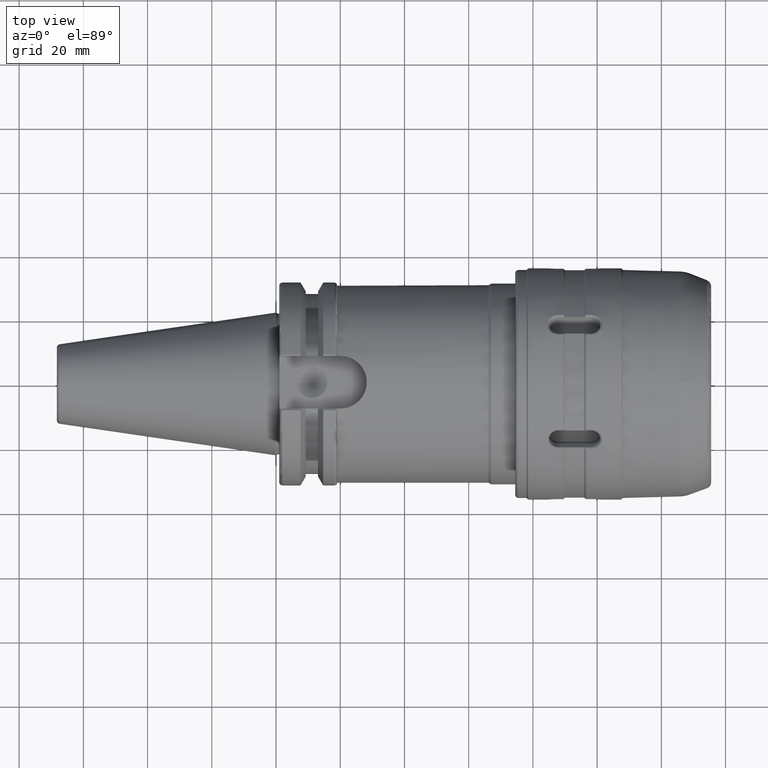
[diagram: clean part render]
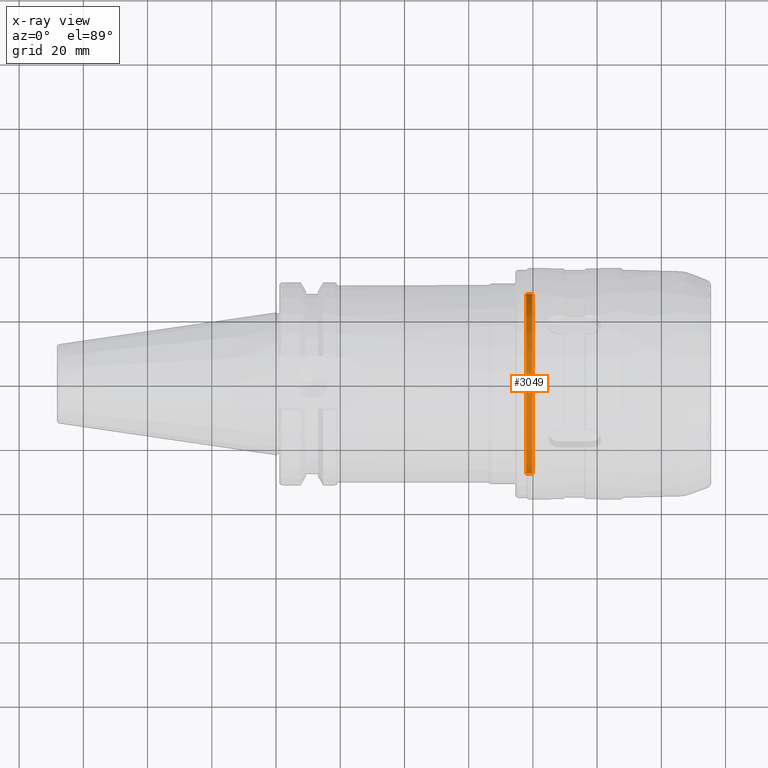
[diagram: x-ray — body ghosted, one internal face saturated and labeled with its STEP entity id]
A machine part, top view, then the same camera in x-ray: the body is ghosted and one INTERNAL B-rep face — a face not visible from any outside direction — is saturated and labeled: STEP entity #3049.
In plain terms, the highlighted cylindrical surface (bore or boss wall) has radius 28 mm, axis along (1, 0, 0).
Its self-contained STEP definition (entity closure, byte-faithful):
#391=FACE_OUTER_BOUND('',#582,.T.);
#582=EDGE_LOOP('',(#2820,#2821,#2822,#2823));
#717=CIRCLE('',#3418,28.);
#718=CIRCLE('',#3420,28.);
#944=LINE('',#6395,#1169);
#1169=VECTOR('',#4239,28.);
#1496=VERTEX_POINT('',#6391);
#1497=VERTEX_POINT('',#6394);
#1938=EDGE_CURVE('',#1496,#1496,#717,.T.);
#1939=EDGE_CURVE('',#1496,#1497,#944,.T.);
#1940=EDGE_CURVE('',#1497,#1497,#718,.T.);
#2820=ORIENTED_EDGE('',*,*,#1938,.T.);
#2821=ORIENTED_EDGE('',*,*,#1939,.T.);
#2822=ORIENTED_EDGE('',*,*,#1940,.F.);
#2823=ORIENTED_EDGE('',*,*,#1939,.F.);
#2875=CYLINDRICAL_SURFACE('',#3419,28.);
#3049=ADVANCED_FACE('',(#391),#2875,.F.);
#3418=AXIS2_PLACEMENT_3D('',#6392,#4235,#4236);
#3419=AXIS2_PLACEMENT_3D('',#6393,#4237,#4238);
#3420=AXIS2_PLACEMENT_3D('',#6396,#4240,#4241);
#4235=DIRECTION('center_axis',(1.,0.,0.));
#4236=DIRECTION('ref_axis',(0.,0.,-1.));
#4237=DIRECTION('center_axis',(1.,0.,0.));
#4238=DIRECTION('ref_axis',(0.,1.,0.));
#4239=DIRECTION('',(-1.,0.,0.));
#4240=DIRECTION('center_axis',(1.,0.,0.));
#4241=DIRECTION('ref_axis',(0.,0.,-1.));
#6391=CARTESIAN_POINT('',(5.3,-28.,-3.42901103761259E-15));
#6392=CARTESIAN_POINT('Origin',(5.3,0.,0.));
#6393=CARTESIAN_POINT('Origin',(4.35,0.,0.));
#6394=CARTESIAN_POINT('',(3.4,-28.,-3.42901103761259E-15));
#6395=CARTESIAN_POINT('',(4.35,-28.,-3.42901103761259E-15));
#6396=CARTESIAN_POINT('Origin',(3.4,0.,0.));